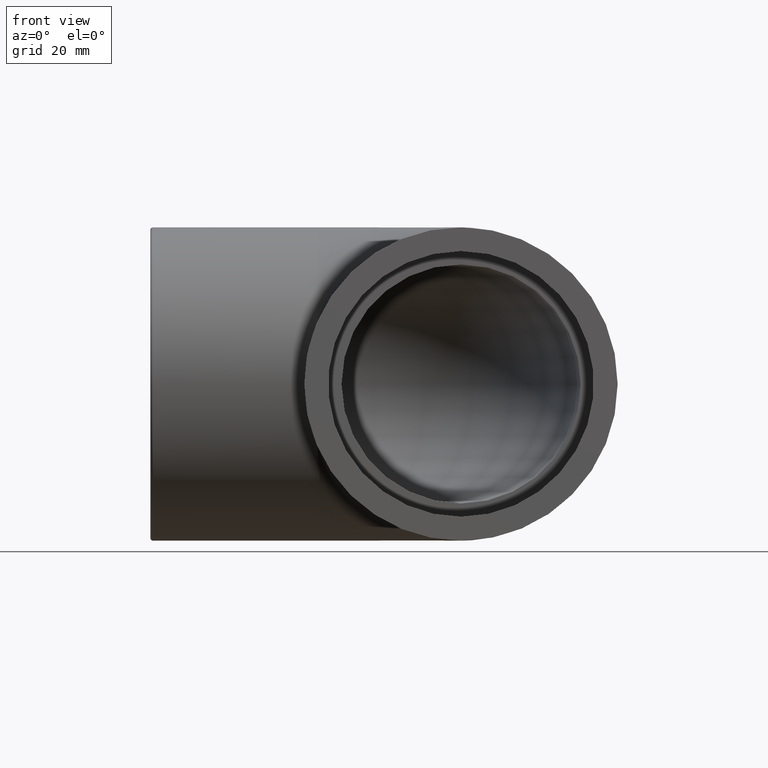
[diagram: clean part render]
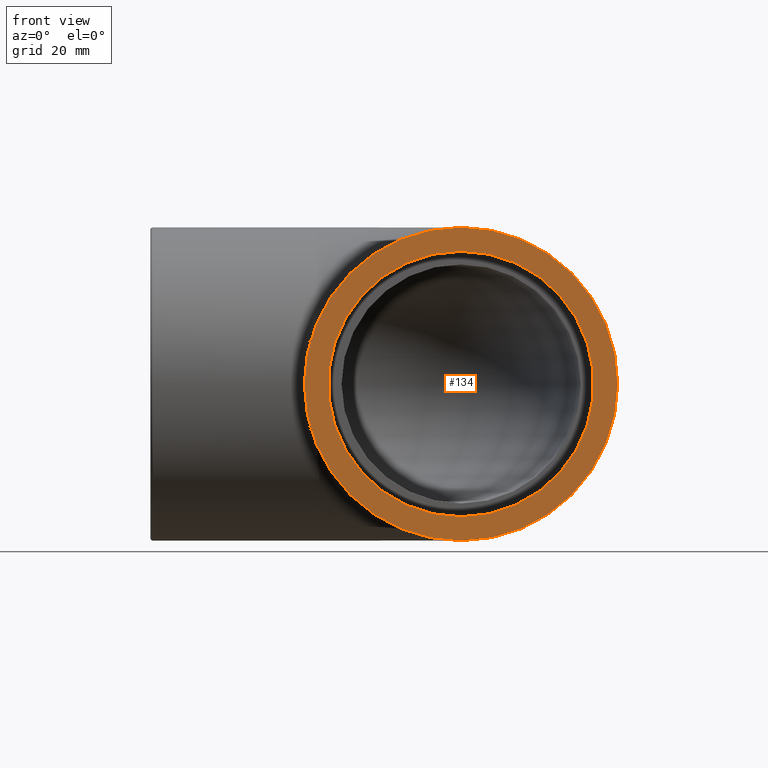
[diagram: same view with one face highlighted and labeled with its STEP entity id]
A machine part, front view. The second image highlights one B-rep face of the part: STEP entity #134.
In plain terms, the highlighted planar face has unit normal (-0, -1, 0).
Its self-contained STEP definition (entity closure, byte-faithful):
#19=PLANE('',#156);
#31=FACE_BOUND('',#60,.T.);
#42=FACE_OUTER_BOUND('',#59,.T.);
#59=EDGE_LOOP('',(#116));
#60=EDGE_LOOP('',(#117));
#70=CIRCLE('',#145,25.);
#75=CIRCLE('',#155,29.5);
#81=VERTEX_POINT('',#217);
#86=VERTEX_POINT('',#259);
#92=EDGE_CURVE('',#81,#81,#70,.T.);
#98=EDGE_CURVE('',#86,#86,#75,.T.);
#116=ORIENTED_EDGE('',*,*,#98,.F.);
#117=ORIENTED_EDGE('',*,*,#92,.T.);
#134=ADVANCED_FACE('',(#42,#31),#19,.T.);
#145=AXIS2_PLACEMENT_3D('',#218,#174,#175);
#155=AXIS2_PLACEMENT_3D('',#260,#194,#195);
#156=AXIS2_PLACEMENT_3D('',#261,#196,#197);
#174=DIRECTION('center_axis',(6.12323399573677E-17,1.,0.));
#175=DIRECTION('ref_axis',(0.,0.,-1.));
#194=DIRECTION('center_axis',(6.12323399573677E-17,1.,0.));
#195=DIRECTION('ref_axis',(0.,0.,-1.));
#196=DIRECTION('center_axis',(-6.12323399573677E-17,-1.,0.));
#197=DIRECTION('ref_axis',(0.,0.,1.));
#217=CARTESIAN_POINT('',(-6.64370888537439E-15,-58.5,25.));
#218=CARTESIAN_POINT('Origin',(-3.58209188750601E-15,-58.5,0.));
#259=CARTESIAN_POINT('',(-29.5,-58.5,0.));
#260=CARTESIAN_POINT('Origin',(-3.58209188750601E-15,-58.5,0.));
#261=CARTESIAN_POINT('Origin',(-29.5,-58.5,0.));